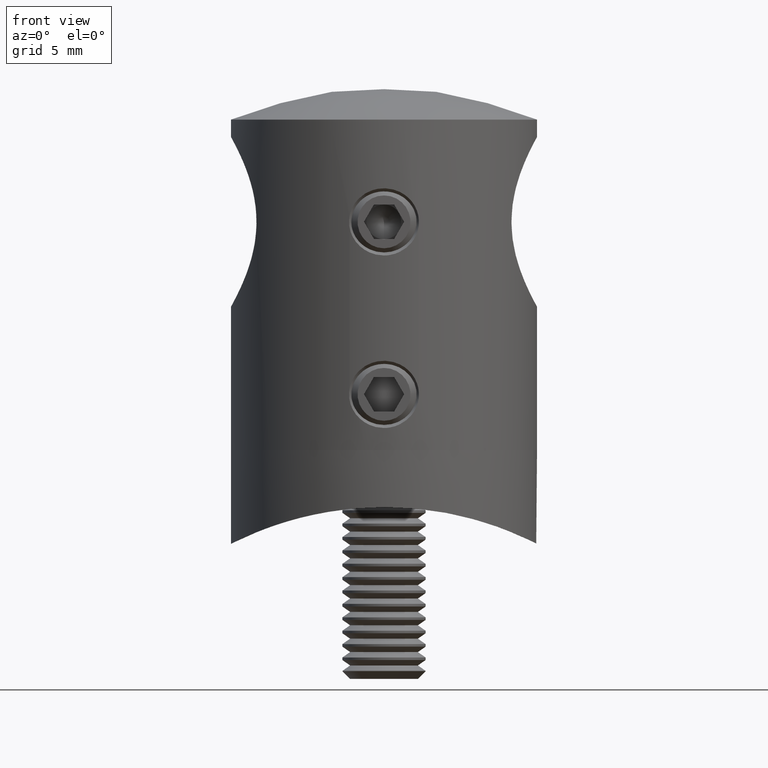
[diagram: clean part render]
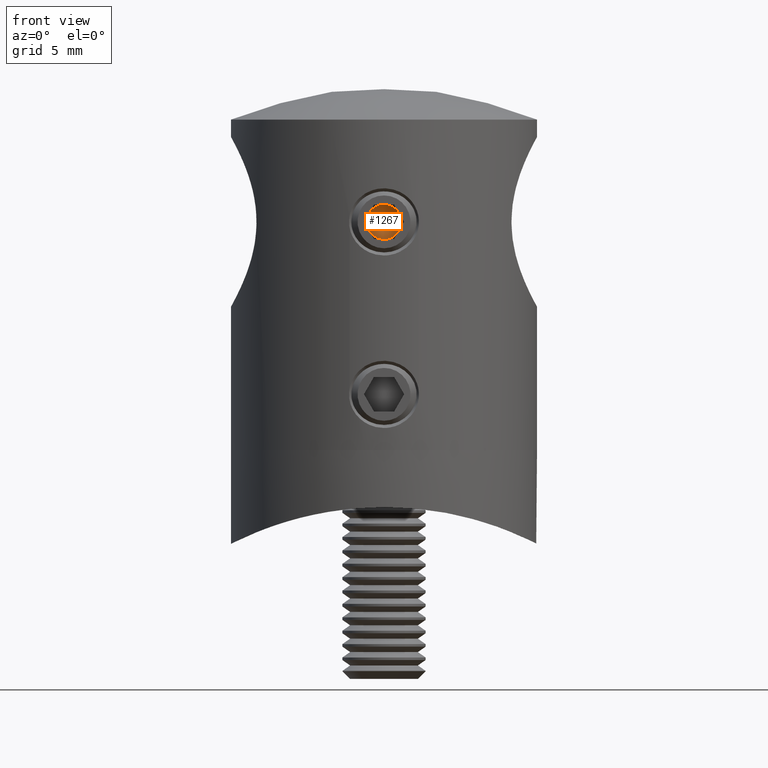
[diagram: same view with one face highlighted and labeled with its STEP entity id]
A machine part, front view. The second image highlights one B-rep face of the part: STEP entity #1267.
In plain terms, the highlighted conical surface has half-angle 59 deg.
Its self-contained STEP definition (entity closure, byte-faithful):
#78 = EDGE_CURVE ( 'NONE', #18029, #2636, #11149, .T. ) ;
#214 = CARTESIAN_POINT ( 'NONE',  ( 2.000000000000001300, -1.082531754730552600, 0.6250000000000086600 ) ) ;
#846 = CARTESIAN_POINT ( 'NONE',  ( 2.000000000000001300, 0.0000000000000000000, 5.755839955992561400E-015 ) ) ;
#1267 = ADVANCED_FACE ( 'NONE', ( #20674 ), #4589, .F. ) ;
#1381 = CIRCLE ( 'NONE', #17186, 1.250000000000002900 ) ;
#1400 = CIRCLE ( 'NONE', #16018, 1.250000000000005300 ) ;
#1496 = VERTEX_POINT ( 'NONE', #9783 ) ;
#1963 = EDGE_CURVE ( 'NONE', #2636, #4778, #13268, .T. ) ;
#2404 = AXIS2_PLACEMENT_3D ( 'NONE', #12399, #5340, #10571 ) ;
#2475 = CIRCLE ( 'NONE', #20706, 1.250000000000002900 ) ;
#2608 = CARTESIAN_POINT ( 'NONE',  ( 2.000000000000001300, -1.082531754730553300, -0.6249999999999958900 ) ) ;
#2636 = VERTEX_POINT ( 'NONE', #11967 ) ;
#3702 = DIRECTION ( 'NONE',  ( 3.469446951953599400E-016, 0.0000000000000000000, -1.000000000000000000 ) ) ;
#4196 = CARTESIAN_POINT ( 'NONE',  ( 2.000000000000000000, 0.0000000000000000000, 6.209410300080172700E-015 ) ) ;
#4228 = VERTEX_POINT ( 'NONE', #2608 ) ;
#4236 = AXIS2_PLACEMENT_3D ( 'NONE', #18835, #17019, #5112 ) ;
#4589 = CONICAL_SURFACE ( 'NONE', #9845, 1.250000000000005300, 1.029744258676652800 ) ;
#4637 = CARTESIAN_POINT ( 'NONE',  ( 2.000000000000000000, 0.0000000000000000000, 6.209410300080172700E-015 ) ) ;
#4778 = VERTEX_POINT ( 'NONE', #6630 ) ;
#5112 = DIRECTION ( 'NONE',  ( 0.0000000000000000000, 0.0000000000000000000, 1.000000000000000000 ) ) ;
#5340 = DIRECTION ( 'NONE',  ( -1.000000000000000000, -0.0000000000000000000, 0.0000000000000000000 ) ) ;
#6630 = CARTESIAN_POINT ( 'NONE',  ( 2.000000000000001300, 1.082531754730552600, 0.6250000000000085500 ) ) ;
#7509 = ORIENTED_EDGE ( 'NONE', *, *, #20482, .F. ) ;
#7770 = DIRECTION ( 'NONE',  ( 0.0000000000000000000, 0.0000000000000000000, 1.000000000000000000 ) ) ;
#7814 = AXIS2_PLACEMENT_3D ( 'NONE', #4196, #9372, #7770 ) ;
#9372 = DIRECTION ( 'NONE',  ( -1.000000000000000000, -0.0000000000000000000, 0.0000000000000000000 ) ) ;
#9783 = CARTESIAN_POINT ( 'NONE',  ( 2.000000000000001300, 1.082531754730553100, -0.6249999999999965600 ) ) ;
#9845 = AXIS2_PLACEMENT_3D ( 'NONE', #19505, #14323, #3702 ) ;
#9872 = DIRECTION ( 'NONE',  ( -1.000000000000000000, -0.0000000000000000000, 0.0000000000000000000 ) ) ;
#9951 = DIRECTION ( 'NONE',  ( 0.0000000000000000000, 0.0000000000000000000, 1.000000000000000000 ) ) ;
#10571 = DIRECTION ( 'NONE',  ( 0.0000000000000000000, 0.0000000000000000000, 1.000000000000000000 ) ) ;
#11149 = CIRCLE ( 'NONE', #7814, 1.250000000000002900 ) ;
#11333 = CARTESIAN_POINT ( 'NONE',  ( 2.000000000000000000, 0.0000000000000000000, 6.209410300080172700E-015 ) ) ;
#11475 = DIRECTION ( 'NONE',  ( 0.0000000000000000000, 0.0000000000000000000, 1.000000000000000000 ) ) ;
#11846 = ORIENTED_EDGE ( 'NONE', *, *, #1963, .F. ) ;
#11967 = CARTESIAN_POINT ( 'NONE',  ( 2.000000000000000000, 0.0000000000000000000, 1.250000000000000200 ) ) ;
#12399 = CARTESIAN_POINT ( 'NONE',  ( 2.000000000000000000, 0.0000000000000000000, 6.209410300080172700E-015 ) ) ;
#12775 = EDGE_CURVE ( 'NONE', #21772, #4228, #1381, .T. ) ;
#13268 = CIRCLE ( 'NONE', #2404, 1.250000000000002900 ) ;
#13348 = EDGE_LOOP ( 'NONE', ( #14280, #7509, #11846, #17718, #14683, #22035 ) ) ;
#14280 = ORIENTED_EDGE ( 'NONE', *, *, #20346, .T. ) ;
#14323 = DIRECTION ( 'NONE',  ( 1.000000000000000000, -0.0000000000000000000, 2.180260461768213300E-016 ) ) ;
#14683 = ORIENTED_EDGE ( 'NONE', *, *, #20789, .F. ) ;
#14725 = DIRECTION ( 'NONE',  ( 1.000000000000000000, -0.0000000000000000000, 2.180260461768213300E-016 ) ) ;
#16018 = AXIS2_PLACEMENT_3D ( 'NONE', #846, #14725, #21469 ) ;
#16898 = CIRCLE ( 'NONE', #4236, 1.250000000000002900 ) ;
#17019 = DIRECTION ( 'NONE',  ( -1.000000000000000000, -0.0000000000000000000, 0.0000000000000000000 ) ) ;
#17186 = AXIS2_PLACEMENT_3D ( 'NONE', #4637, #9872, #9951 ) ;
#17718 = ORIENTED_EDGE ( 'NONE', *, *, #78, .F. ) ;
#18029 = VERTEX_POINT ( 'NONE', #214 ) ;
#18835 = CARTESIAN_POINT ( 'NONE',  ( 2.000000000000000000, 0.0000000000000000000, 6.209410300080172700E-015 ) ) ;
#19379 = CARTESIAN_POINT ( 'NONE',  ( 2.000000000000001800, 3.755786496842908900E-016, -1.249999999999999300 ) ) ;
#19505 = CARTESIAN_POINT ( 'NONE',  ( 2.000000000000001300, 0.0000000000000000000, 5.755839955992561400E-015 ) ) ;
#20223 = DIRECTION ( 'NONE',  ( -1.000000000000000000, -0.0000000000000000000, 0.0000000000000000000 ) ) ;
#20346 = EDGE_CURVE ( 'NONE', #21772, #1496, #1400, .T. ) ;
#20482 = EDGE_CURVE ( 'NONE', #4778, #1496, #2475, .T. ) ;
#20674 = FACE_OUTER_BOUND ( 'NONE', #13348, .T. ) ;
#20706 = AXIS2_PLACEMENT_3D ( 'NONE', #11333, #20223, #11475 ) ;
#20789 = EDGE_CURVE ( 'NONE', #4228, #18029, #16898, .T. ) ;
#21469 = DIRECTION ( 'NONE',  ( 3.469446951953599400E-016, 0.0000000000000000000, -1.000000000000000000 ) ) ;
#21772 = VERTEX_POINT ( 'NONE', #19379 ) ;
#22035 = ORIENTED_EDGE ( 'NONE', *, *, #12775, .F. ) ;